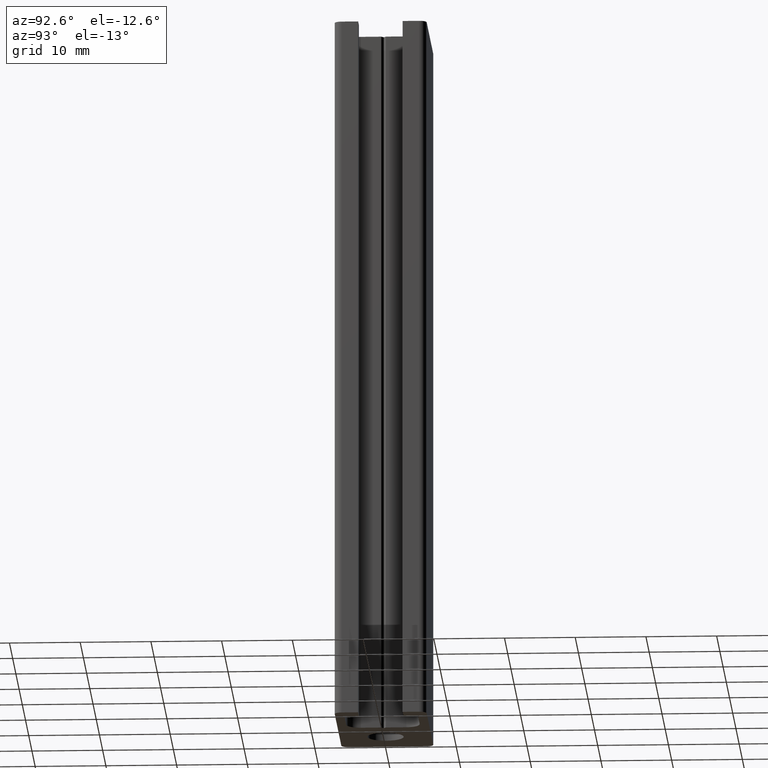
[diagram: clean part render]
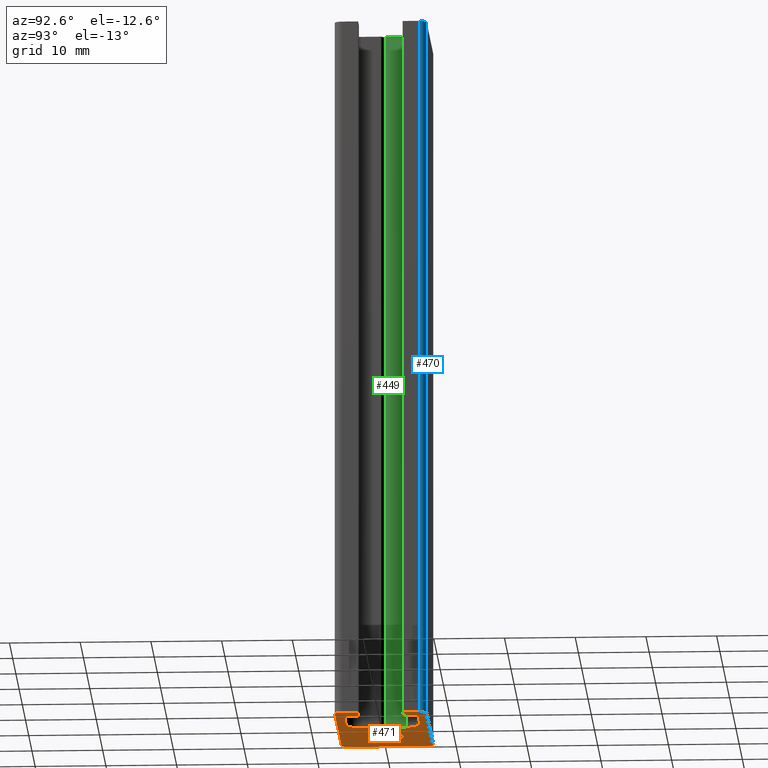
[diagram: same view with three faces highlighted in distinct colors, each labeled with its STEP entity id]
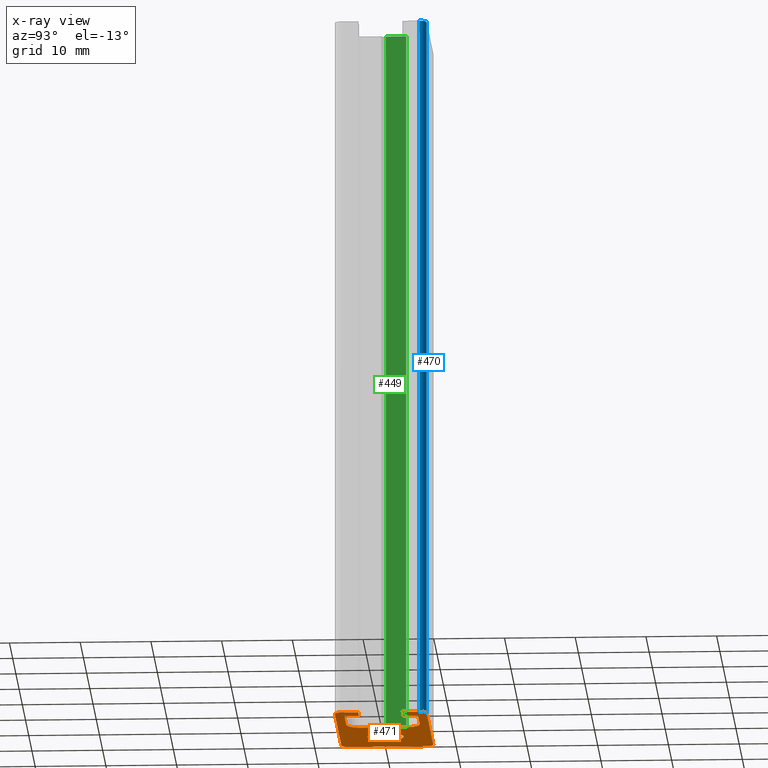
[diagram: x-ray of the same camera — body ghosted, the three highlighted faces saturated]
A machine part, auxiliary view with three faces highlighted in distinct colors.
The next image is the same camera in x-ray (body ghosted, the three faces saturated) — at least one of them is partly hidden behind the body in this view.
Their STEP definitions:

[orange] entity #471 — the highlighted planar face has unit normal (0, 0, 1).
#17=LINE('',#654,#68);
#21=LINE('',#661,#72);
#24=LINE('',#667,#75);
#27=LINE('',#673,#78);
#31=LINE('',#685,#82);
#34=LINE('',#691,#85);
#37=LINE('',#697,#88);
#40=LINE('',#705,#91);
#44=LINE('',#712,#95);
#47=LINE('',#718,#98);
#48=LINE('',#724,#99);
#53=LINE('',#733,#104);
#59=LINE('',#755,#110);
#62=LINE('',#763,#113);
#65=LINE('',#771,#116);
#68=VECTOR('',#524,2.875);
#72=VECTOR('',#530,0.566620208576858);
#75=VECTOR('',#535,0.566620208576856);
#78=VECTOR('',#540,2.875);
#82=VECTOR('',#552,5.5);
#85=VECTOR('',#557,2.05);
#88=VECTOR('',#562,2.50000000000002);
#91=VECTOR('',#567,2.49999999999999);
#95=VECTOR('',#573,2.05);
#98=VECTOR('',#578,5.5);
#99=VECTOR('',#587,2.35000000000001);
#104=VECTOR('',#594,2.35);
#110=VECTOR('',#616,20.5);
#113=VECTOR('',#625,11.);
#116=VECTOR('',#634,20.5);
#133=PLANE('',#511);
#136=FACE_BOUND('',#187,.T.);
#160=FACE_OUTER_BOUND('',#186,.T.);
#186=EDGE_LOOP('',(#419,#420,#421,#422,#423,#424,#425,#426,#427,#428,#429,
#430,#431,#432,#433,#434,#435,#436,#437,#438,#439));
#187=EDGE_LOOP('',(#440));
#189=CIRCLE('',#476,2.575);
#191=CIRCLE('',#483,2.);
#193=CIRCLE('',#492,2.);
#198=CIRCLE('',#501,0.999999999999996);
#199=CIRCLE('',#504,1.);
#200=CIRCLE('',#507,1.);
#201=CIRCLE('',#510,1.);
#203=VERTEX_POINT('',#645);
#206=VERTEX_POINT('',#651);
#207=VERTEX_POINT('',#653);
#209=VERTEX_POINT('',#659);
#211=VERTEX_POINT('',#665);
#213=VERTEX_POINT('',#671);
#215=VERTEX_POINT('',#677);
#217=VERTEX_POINT('',#683);
#219=VERTEX_POINT('',#689);
#221=VERTEX_POINT('',#695);
#224=VERTEX_POINT('',#702);
#225=VERTEX_POINT('',#704);
#227=VERTEX_POINT('',#710);
#229=VERTEX_POINT('',#716);
#230=VERTEX_POINT('',#723);
#233=VERTEX_POINT('',#731);
#240=VERTEX_POINT('',#749);
#241=VERTEX_POINT('',#753);
#242=VERTEX_POINT('',#757);
#243=VERTEX_POINT('',#761);
#244=VERTEX_POINT('',#765);
#245=VERTEX_POINT('',#769);
#247=EDGE_CURVE('',#203,#203,#189,.T.);
#250=EDGE_CURVE('',#207,#206,#17,.T.);
#254=EDGE_CURVE('',#206,#209,#21,.T.);
#257=EDGE_CURVE('',#209,#211,#24,.T.);
#260=EDGE_CURVE('',#211,#213,#27,.T.);
#263=EDGE_CURVE('',#213,#215,#191,.T.);
#266=EDGE_CURVE('',#215,#217,#31,.T.);
#269=EDGE_CURVE('',#217,#219,#34,.T.);
#272=EDGE_CURVE('',#219,#221,#37,.T.);
#275=EDGE_CURVE('',#225,#224,#40,.T.);
#279=EDGE_CURVE('',#224,#227,#44,.T.);
#282=EDGE_CURVE('',#227,#229,#47,.T.);
#284=EDGE_CURVE('',#229,#207,#193,.T.);
#285=EDGE_CURVE('',#230,#225,#48,.T.);
#290=EDGE_CURVE('',#221,#233,#53,.T.);
#299=EDGE_CURVE('',#233,#240,#198,.T.);
#301=EDGE_CURVE('',#240,#241,#59,.T.);
#303=EDGE_CURVE('',#241,#242,#199,.T.);
#305=EDGE_CURVE('',#242,#243,#62,.T.);
#307=EDGE_CURVE('',#243,#244,#200,.T.);
#309=EDGE_CURVE('',#244,#245,#65,.T.);
#310=EDGE_CURVE('',#245,#230,#201,.T.);
#419=ORIENTED_EDGE('',*,*,#272,.T.);
#420=ORIENTED_EDGE('',*,*,#290,.T.);
#421=ORIENTED_EDGE('',*,*,#299,.T.);
#422=ORIENTED_EDGE('',*,*,#301,.T.);
#423=ORIENTED_EDGE('',*,*,#303,.T.);
#424=ORIENTED_EDGE('',*,*,#305,.T.);
#425=ORIENTED_EDGE('',*,*,#307,.T.);
#426=ORIENTED_EDGE('',*,*,#309,.T.);
#427=ORIENTED_EDGE('',*,*,#310,.T.);
#428=ORIENTED_EDGE('',*,*,#285,.T.);
#429=ORIENTED_EDGE('',*,*,#275,.T.);
#430=ORIENTED_EDGE('',*,*,#279,.T.);
#431=ORIENTED_EDGE('',*,*,#282,.T.);
#432=ORIENTED_EDGE('',*,*,#284,.T.);
#433=ORIENTED_EDGE('',*,*,#250,.T.);
#434=ORIENTED_EDGE('',*,*,#254,.T.);
#435=ORIENTED_EDGE('',*,*,#257,.T.);
#436=ORIENTED_EDGE('',*,*,#260,.T.);
#437=ORIENTED_EDGE('',*,*,#263,.T.);
#438=ORIENTED_EDGE('',*,*,#266,.T.);
#439=ORIENTED_EDGE('',*,*,#269,.T.);
#440=ORIENTED_EDGE('',*,*,#247,.T.);
#471=ADVANCED_FACE('',(#160,#136),#133,.F.);
#476=AXIS2_PLACEMENT_3D('',#646,#518,#519);
#483=AXIS2_PLACEMENT_3D('',#679,#546,#547);
#492=AXIS2_PLACEMENT_3D('',#721,#583,#584);
#501=AXIS2_PLACEMENT_3D('',#751,#611,#612);
#504=AXIS2_PLACEMENT_3D('',#759,#620,#621);
#507=AXIS2_PLACEMENT_3D('',#767,#629,#630);
#510=AXIS2_PLACEMENT_3D('',#773,#637,#638);
#511=AXIS2_PLACEMENT_3D('',#774,#639,#640);
#518=DIRECTION('center_axis',(0.,0.,1.));
#519=DIRECTION('ref_axis',(-1.,0.,0.));
#524=DIRECTION('',(3.86164530304402E-16,-1.,0.));
#530=DIRECTION('',(-0.819152044288993,-0.573576436351045,0.));
#535=DIRECTION('',(0.819152044288991,-0.573576436351047,0.));
#540=DIRECTION('',(0.,-1.,0.));
#546=DIRECTION('center_axis',(0.,0.,1.));
#547=DIRECTION('ref_axis',(-1.,5.55111512312578E-16,0.));
#552=DIRECTION('',(1.,-2.01858731750029E-16,0.));
#557=DIRECTION('',(1.08314441426845E-15,1.,0.));
#562=DIRECTION('',(1.,0.,0.));
#567=DIRECTION('',(-1.,2.22044604925032E-16,0.));
#573=DIRECTION('',(1.08314441426845E-15,1.,0.));
#578=DIRECTION('',(-1.,2.01858731750028E-16,0.));
#583=DIRECTION('center_axis',(0.,0.,1.));
#584=DIRECTION('ref_axis',(5.55111512312579E-16,1.,0.));
#587=DIRECTION('',(0.,-1.,0.));
#594=DIRECTION('',(0.,-1.,0.));
#611=DIRECTION('center_axis',(0.,0.,-1.));
#612=DIRECTION('ref_axis',(0.,-1.,0.));
#616=DIRECTION('',(-1.,-1.08314441426845E-16,0.));
#620=DIRECTION('center_axis',(0.,0.,-1.));
#621=DIRECTION('ref_axis',(-1.,-1.11022302462516E-15,0.));
#625=DIRECTION('',(0.,1.,0.));
#629=DIRECTION('center_axis',(0.,0.,-1.));
#630=DIRECTION('ref_axis',(0.,1.,0.));
#634=DIRECTION('',(1.,-1.08314441426845E-16,0.));
#637=DIRECTION('center_axis',(0.,0.,-1.));
#638=DIRECTION('ref_axis',(1.,0.,0.));
#639=DIRECTION('center_axis',(0.,0.,1.));
#640=DIRECTION('ref_axis',(1.,0.,0.));
#645=CARTESIAN_POINT('',(2.575,3.15346550780443E-16,0.));
#646=CARTESIAN_POINT('Origin',(0.,0.,0.));
#651=CARTESIAN_POINT('',(6.,0.324999999999998,0.));
#653=CARTESIAN_POINT('',(6.,3.2,0.));
#654=CARTESIAN_POINT('',(6.,0.162499999999999,0.));
#659=CARTESIAN_POINT('',(5.53585189780881,-1.72084568816899E-15,0.));
#661=CARTESIAN_POINT('',(5.27219462867628,-0.184614807350386,0.));
#665=CARTESIAN_POINT('',(6.,-0.325000000000002,0.));
#667=CARTESIAN_POINT('',(5.50426867977187,0.0221148073503838,0.));
#671=CARTESIAN_POINT('',(6.,-3.2,0.));
#673=CARTESIAN_POINT('',(6.,-1.6,0.));
#677=CARTESIAN_POINT('',(8.,-5.2,0.));
#679=CARTESIAN_POINT('Origin',(8.,-3.2,0.));
#683=CARTESIAN_POINT('',(13.5,-5.2,0.));
#685=CARTESIAN_POINT('',(9.125,-5.2,0.));
#689=CARTESIAN_POINT('',(13.5,-3.15,0.));
#691=CARTESIAN_POINT('',(13.5,-1.57500000000001,0.));
#695=CARTESIAN_POINT('',(16.,-3.15,0.));
#697=CARTESIAN_POINT('',(10.375,-3.15,0.));
#702=CARTESIAN_POINT('',(13.5,3.15,0.));
#704=CARTESIAN_POINT('',(16.,3.15,0.));
#705=CARTESIAN_POINT('',(9.125,3.15,0.));
#710=CARTESIAN_POINT('',(13.5,5.2,0.));
#712=CARTESIAN_POINT('',(13.5,2.59999999999999,0.));
#716=CARTESIAN_POINT('',(8.,5.2,0.));
#718=CARTESIAN_POINT('',(6.375,5.2,0.));
#721=CARTESIAN_POINT('Origin',(8.,3.2,0.));
#723=CARTESIAN_POINT('',(16.,5.5,0.));
#724=CARTESIAN_POINT('',(16.,-2.75,0.));
#731=CARTESIAN_POINT('',(16.,-5.5,0.));
#733=CARTESIAN_POINT('',(16.,-2.75,0.));
#749=CARTESIAN_POINT('',(15.,-6.5,0.));
#751=CARTESIAN_POINT('Origin',(15.,-5.5,0.));
#753=CARTESIAN_POINT('',(-5.5,-6.5,0.));
#755=CARTESIAN_POINT('',(-0.374999999999999,-6.5,0.));
#757=CARTESIAN_POINT('',(-6.5,-5.5,0.));
#759=CARTESIAN_POINT('Origin',(-5.5,-5.5,0.));
#761=CARTESIAN_POINT('',(-6.5,5.5,0.));
#763=CARTESIAN_POINT('',(-6.5,2.75,0.));
#765=CARTESIAN_POINT('',(-5.5,6.5,0.));
#767=CARTESIAN_POINT('Origin',(-5.5,5.5,0.));
#769=CARTESIAN_POINT('',(15.,6.5,0.));
#771=CARTESIAN_POINT('',(9.875,6.5,0.));
#773=CARTESIAN_POINT('Origin',(15.,5.5,0.));
#774=CARTESIAN_POINT('Origin',(4.75,0.,0.));

[blue] entity #470 — the highlighted cylindrical surface (edge-blend (fillet) strip) has radius 1 mm, axis along (0, 0, 1).
#49=LINE('',#726,#100);
#64=LINE('',#770,#115);
#100=VECTOR('',#588,100.);
#115=VECTOR('',#633,100.);
#159=FACE_OUTER_BOUND('',#185,.T.);
#185=EDGE_LOOP('',(#415,#416,#417,#418));
#194=CIRCLE('',#496,1.);
#201=CIRCLE('',#510,1.);
#230=VERTEX_POINT('',#723);
#231=VERTEX_POINT('',#725);
#234=VERTEX_POINT('',#735);
#245=VERTEX_POINT('',#769);
#286=EDGE_CURVE('',#230,#231,#49,.T.);
#291=EDGE_CURVE('',#234,#231,#194,.T.);
#308=EDGE_CURVE('',#245,#234,#64,.T.);
#310=EDGE_CURVE('',#245,#230,#201,.T.);
#415=ORIENTED_EDGE('',*,*,#291,.T.);
#416=ORIENTED_EDGE('',*,*,#286,.F.);
#417=ORIENTED_EDGE('',*,*,#310,.F.);
#418=ORIENTED_EDGE('',*,*,#308,.T.);
#447=CYLINDRICAL_SURFACE('',#509,1.);
#470=ADVANCED_FACE('',(#159),#447,.T.);
#496=AXIS2_PLACEMENT_3D('',#736,#597,#598);
#509=AXIS2_PLACEMENT_3D('',#772,#635,#636);
#510=AXIS2_PLACEMENT_3D('',#773,#637,#638);
#588=DIRECTION('',(0.,0.,1.));
#597=DIRECTION('center_axis',(0.,0.,-1.));
#598=DIRECTION('ref_axis',(1.,0.,0.));
#633=DIRECTION('',(0.,0.,1.));
#635=DIRECTION('center_axis',(0.,0.,1.));
#636=DIRECTION('ref_axis',(1.,0.,0.));
#637=DIRECTION('center_axis',(0.,0.,-1.));
#638=DIRECTION('ref_axis',(1.,0.,0.));
#723=CARTESIAN_POINT('',(16.,5.5,0.));
#725=CARTESIAN_POINT('',(16.,5.5,100.));
#726=CARTESIAN_POINT('',(16.,5.5,0.));
#735=CARTESIAN_POINT('',(15.,6.5,100.));
#736=CARTESIAN_POINT('Origin',(15.,5.5,100.));
#769=CARTESIAN_POINT('',(15.,6.5,0.));
#770=CARTESIAN_POINT('',(15.,6.5,0.));
#772=CARTESIAN_POINT('Origin',(15.,5.5,0.));
#773=CARTESIAN_POINT('Origin',(15.,5.5,0.));

[green] entity #449 — the highlighted planar face has unit normal (-1, -0, 0).
#15=LINE('',#650,#66);
#16=LINE('',#652,#67);
#17=LINE('',#654,#68);
#18=LINE('',#655,#69);
#66=VECTOR('',#522,2.875);
#67=VECTOR('',#523,100.);
#68=VECTOR('',#524,2.875);
#69=VECTOR('',#525,100.);
#117=PLANE('',#477);
#138=FACE_OUTER_BOUND('',#163,.T.);
#163=EDGE_LOOP('',(#313,#314,#315,#316));
#204=VERTEX_POINT('',#648);
#205=VERTEX_POINT('',#649);
#206=VERTEX_POINT('',#651);
#207=VERTEX_POINT('',#653);
#248=EDGE_CURVE('',#204,#205,#15,.T.);
#249=EDGE_CURVE('',#206,#204,#16,.T.);
#250=EDGE_CURVE('',#207,#206,#17,.T.);
#251=EDGE_CURVE('',#207,#205,#18,.T.);
#313=ORIENTED_EDGE('',*,*,#248,.F.);
#314=ORIENTED_EDGE('',*,*,#249,.F.);
#315=ORIENTED_EDGE('',*,*,#250,.F.);
#316=ORIENTED_EDGE('',*,*,#251,.T.);
#449=ADVANCED_FACE('',(#138),#117,.F.);
#477=AXIS2_PLACEMENT_3D('',#647,#520,#521);
#520=DIRECTION('center_axis',(-1.,-3.86164530304402E-16,0.));
#521=DIRECTION('ref_axis',(0.,0.,1.));
#522=DIRECTION('',(-3.86164530304402E-16,1.,0.));
#523=DIRECTION('',(0.,0.,1.));
#524=DIRECTION('',(3.86164530304402E-16,-1.,0.));
#525=DIRECTION('',(0.,0.,1.));
#647=CARTESIAN_POINT('Origin',(6.,0.324999999999998,0.));
#648=CARTESIAN_POINT('',(6.,0.324999999999998,100.));
#649=CARTESIAN_POINT('',(6.,3.2,100.));
#650=CARTESIAN_POINT('',(6.,0.162499999999999,100.));
#651=CARTESIAN_POINT('',(6.,0.324999999999998,0.));
#652=CARTESIAN_POINT('',(6.,0.324999999999998,0.));
#653=CARTESIAN_POINT('',(6.,3.2,0.));
#654=CARTESIAN_POINT('',(6.,0.162499999999999,0.));
#655=CARTESIAN_POINT('',(6.,3.2,0.));